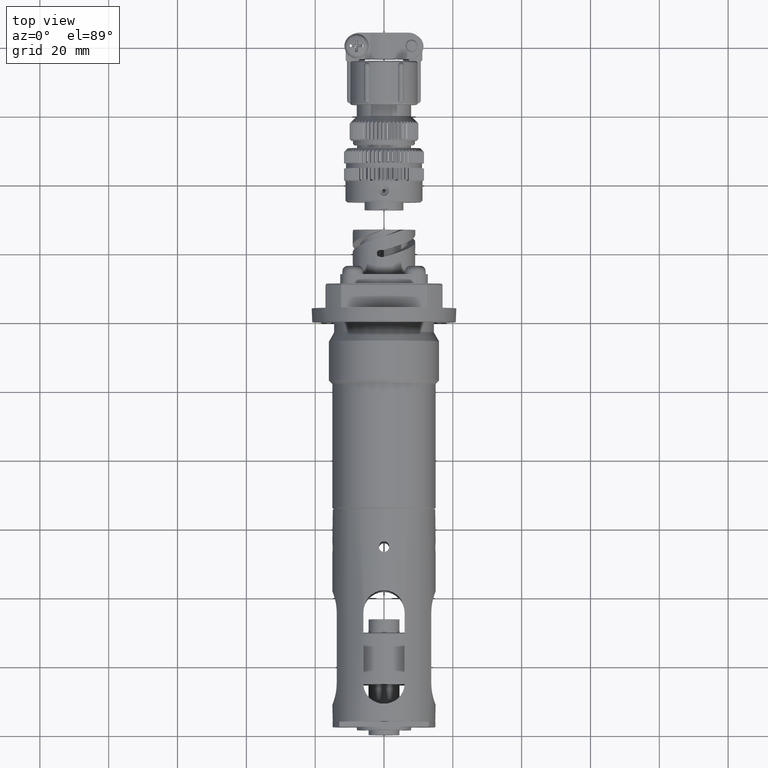
[diagram: clean part render]
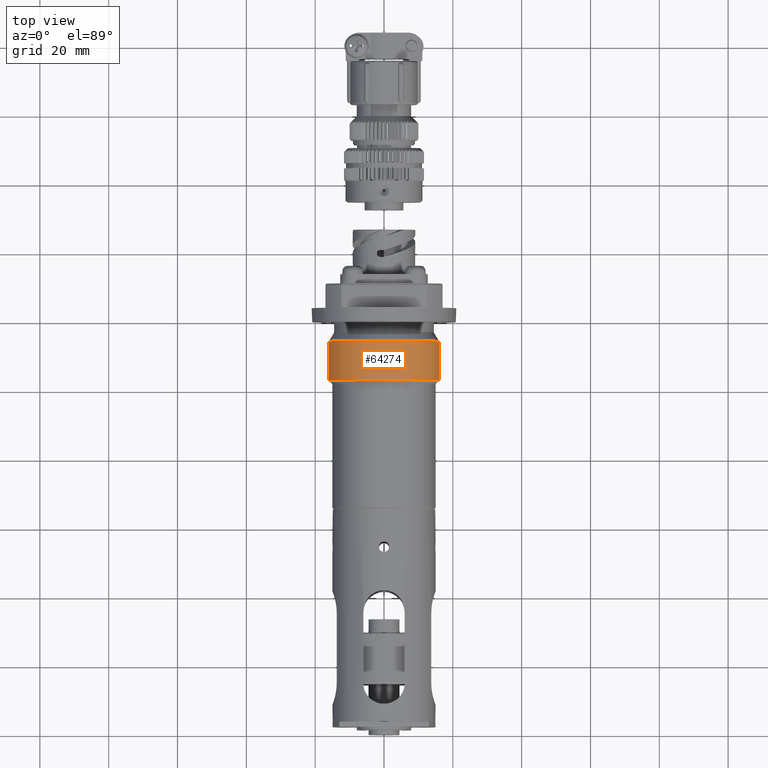
[diagram: same view with one face highlighted and labeled with its STEP entity id]
A machine part, top view. The second image highlights one B-rep face of the part: STEP entity #64274.
In plain terms, the highlighted cylindrical surface (partial cylindrical patch) has radius 16 mm, axis along (-0, 1, -0).
Its self-contained STEP definition (entity closure, byte-faithful):
#46 = ORIENTED_EDGE ( 'NONE', *, *, #60000, .T. ) ;
#1140 = VERTEX_POINT ( 'NONE', #31622 ) ;
#1653 = CARTESIAN_POINT ( 'NONE',  ( 16.00000000000000355, -5.598076211353312459, 1.959434878635765131E-15 ) ) ;
#4270 = CARTESIAN_POINT ( 'NONE',  ( 3.904885880447245663E-15, -16.99999999999998579, 0.0000000000000000000 ) ) ;
#6262 = DIRECTION ( 'NONE',  ( -1.224646799147350002E-16, 1.000000000000000000, -0.0000000000000000000 ) ) ;
#7541 = VERTEX_POINT ( 'NONE', #1653 ) ;
#8838 = DIRECTION ( 'NONE',  ( -1.224646799147350002E-16, 1.000000000000000000, -0.0000000000000000000 ) ) ;
#10175 = ORIENTED_EDGE ( 'NONE', *, *, #52358, .F. ) ;
#10294 = EDGE_CURVE ( 'NONE', #56672, #7541, #41090, .T. ) ;
#11871 = CIRCLE ( 'NONE', #49493, 16.00000000000000000 ) ;
#13249 = CARTESIAN_POINT ( 'NONE',  ( -16.00000000000000000, 14.88581298024860189, 0.0000000000000000000 ) ) ;
#15264 = CARTESIAN_POINT ( 'NONE',  ( 0.0000000000000000000, 14.88581298024860189, 0.0000000000000000000 ) ) ;
#16340 = DIRECTION ( 'NONE',  ( -1.000000000000000000, -2.168404344971008868E-16, 0.0000000000000000000 ) ) ;
#19321 = VECTOR ( 'NONE', #34411, 1000.000000000000000 ) ;
#23546 = CARTESIAN_POINT ( 'NONE',  ( -16.00000000000000000, -16.99999999999998934, 0.0000000000000000000 ) ) ;
#26027 = CYLINDRICAL_SURFACE ( 'NONE', #51936, 16.00000000000000000 ) ;
#27197 = VECTOR ( 'NONE', #8838, 1000.000000000000000 ) ;
#30454 = DIRECTION ( 'NONE',  ( -1.224646799147350002E-16, 1.000000000000000000, -0.0000000000000000000 ) ) ;
#30760 = ORIENTED_EDGE ( 'NONE', *, *, #68188, .T. ) ;
#31622 = CARTESIAN_POINT ( 'NONE',  ( 16.00000000000000355, -16.99999999999998224, 1.959434878635764737E-15 ) ) ;
#34411 = DIRECTION ( 'NONE',  ( -1.224646799147350002E-16, 1.000000000000000000, -0.0000000000000000000 ) ) ;
#35150 = LINE ( 'NONE', #45859, #27197 ) ;
#41090 = CIRCLE ( 'NONE', #54304, 16.00000000000000000 ) ;
#45859 = CARTESIAN_POINT ( 'NONE',  ( 16.00000000000000000, 14.88581298024860367, 1.959434878635765131E-15 ) ) ;
#46741 = CARTESIAN_POINT ( 'NONE',  ( 2.508552933258428597E-15, -5.598076211353313347, 0.0000000000000000000 ) ) ;
#47123 = DIRECTION ( 'NONE',  ( -1.000000000000000000, -1.084202172485504434E-16, 0.0000000000000000000 ) ) ;
#48280 = VERTEX_POINT ( 'NONE', #23546 ) ;
#49149 = CARTESIAN_POINT ( 'NONE',  ( -15.99999999999999645, -5.598076211353315124, 0.0000000000000000000 ) ) ;
#49493 = AXIS2_PLACEMENT_3D ( 'NONE', #4270, #51987, #16340 ) ;
#49640 = EDGE_LOOP ( 'NONE', ( #46, #30760, #50579, #10175 ) ) ;
#50579 = ORIENTED_EDGE ( 'NONE', *, *, #10294, .F. ) ;
#51936 = AXIS2_PLACEMENT_3D ( 'NONE', #15264, #6262, #47123 ) ;
#51987 = DIRECTION ( 'NONE',  ( -1.224646799147350002E-16, 1.000000000000000000, -0.0000000000000000000 ) ) ;
#52358 = EDGE_CURVE ( 'NONE', #48280, #56672, #60682, .T. ) ;
#54304 = AXIS2_PLACEMENT_3D ( 'NONE', #46741, #30454, #67775 ) ;
#56672 = VERTEX_POINT ( 'NONE', #49149 ) ;
#57488 = FACE_OUTER_BOUND ( 'NONE', #49640, .T. ) ;
#60000 = EDGE_CURVE ( 'NONE', #48280, #1140, #11871, .T. ) ;
#60682 = LINE ( 'NONE', #13249, #19321 ) ;
#64274 = ADVANCED_FACE ( 'NONE', ( #57488 ), #26027, .T. ) ;
#67775 = DIRECTION ( 'NONE',  ( -1.000000000000000000, -1.084202172485504434E-16, 0.0000000000000000000 ) ) ;
#68188 = EDGE_CURVE ( 'NONE', #1140, #7541, #35150, .T. ) ;